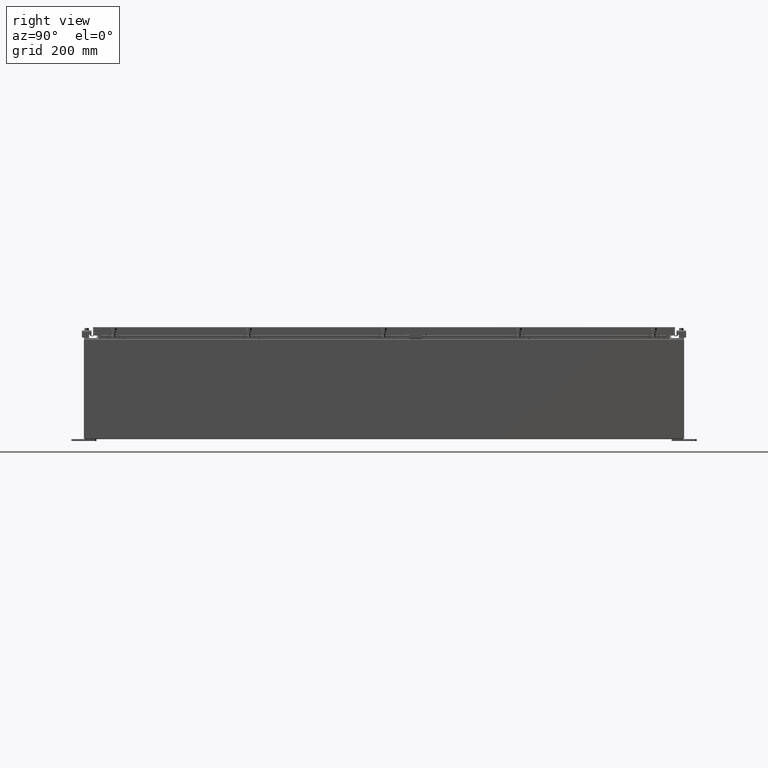
[diagram: clean part render]
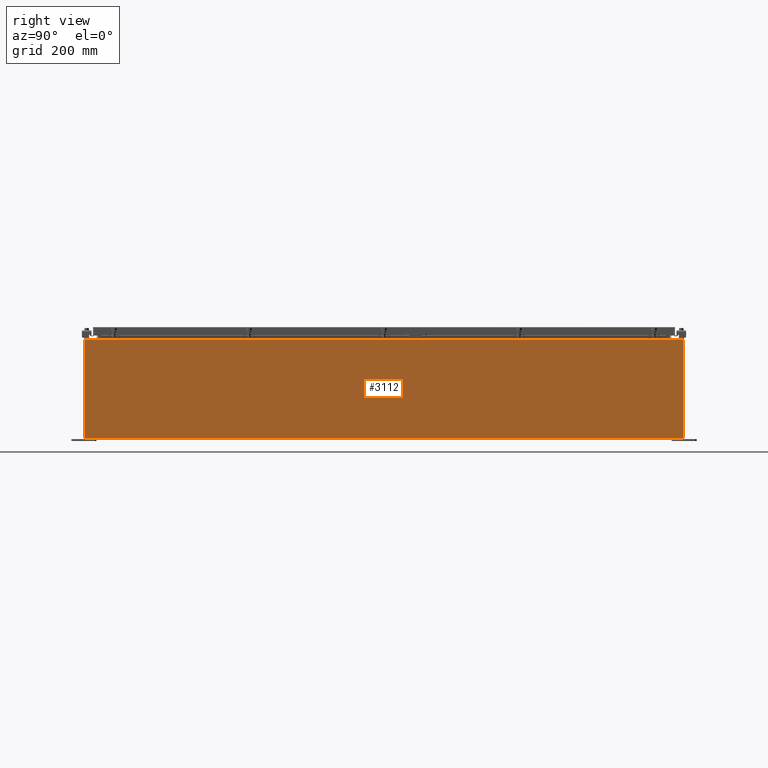
[diagram: same view with one face highlighted and labeled with its STEP entity id]
A machine part, right view. The second image highlights one B-rep face of the part: STEP entity #3112.
In plain terms, the highlighted planar face has unit normal (-1, 0, 0).
Its self-contained STEP definition (entity closure, byte-faithful):
#1357 = EDGE_LOOP ( 'NONE', ( #56021, #49486, #12004, #35021 ) ) ;
#2898 = EDGE_CURVE ( 'NONE', #3398, #40173, #3984, .T. ) ;
#3112 = ADVANCED_FACE ( 'NONE', ( #29569 ), #60872, .F. ) ;
#3398 = VERTEX_POINT ( 'NONE', #12588 ) ;
#3621 = DIRECTION ( 'NONE',  ( -3.523082860860888200E-015, 0.0000000000000000000, -1.000000000000000000 ) ) ;
#3984 = LINE ( 'NONE', #22743, #43611 ) ;
#8281 = DIRECTION ( 'NONE',  ( 3.523082860860888200E-015, 0.0000000000000000000, 1.000000000000000000 ) ) ;
#11101 = EDGE_CURVE ( 'NONE', #40173, #39961, #41421, .T. ) ;
#12004 = ORIENTED_EDGE ( 'NONE', *, *, #56986, .F. ) ;
#12588 = CARTESIAN_POINT ( 'NONE',  ( 18.00000000000003600, 29.92529999999999300, 9.837599999999993000 ) ) ;
#12982 = CARTESIAN_POINT ( 'NONE',  ( 17.99999999999999600, -29.92530000000001100, 0.01299999999999984700 ) ) ;
#14904 = CARTESIAN_POINT ( 'NONE',  ( 17.99999999999999600, -29.92530000000001100, 0.01299999999999984300 ) ) ;
#21168 = DIRECTION ( 'NONE',  ( -0.0000000000000000000, -1.000000000000000000, -0.0000000000000000000 ) ) ;
#22743 = CARTESIAN_POINT ( 'NONE',  ( 18.00000000000003600, 29.92529999999999300, 9.837599999999993000 ) ) ;
#23295 = LINE ( 'NONE', #12982, #61557 ) ;
#23533 = LINE ( 'NONE', #38042, #35241 ) ;
#23581 = CARTESIAN_POINT ( 'NONE',  ( 17.99999999999999600, 0.0000000000000000000, -6.367630515150755500E-014 ) ) ;
#29569 = FACE_OUTER_BOUND ( 'NONE', #1357, .T. ) ;
#29733 = VECTOR ( 'NONE', #3621, 39.37007874015748100 ) ;
#31404 = EDGE_CURVE ( 'NONE', #51643, #3398, #23533, .T. ) ;
#34863 = CARTESIAN_POINT ( 'NONE',  ( 17.99999999999999600, -29.92530000000001100, -6.367630515150755500E-014 ) ) ;
#35021 = ORIENTED_EDGE ( 'NONE', *, *, #31404, .T. ) ;
#35241 = VECTOR ( 'NONE', #8281, 39.37007874015748100 ) ;
#37106 = CARTESIAN_POINT ( 'NONE',  ( 18.00000000000003200, -29.92530000000001100, 9.837600000000000100 ) ) ;
#38042 = CARTESIAN_POINT ( 'NONE',  ( 17.99999999999999600, 29.92529999999998900, -6.367630515150755500E-014 ) ) ;
#39961 = VERTEX_POINT ( 'NONE', #14904 ) ;
#40173 = VERTEX_POINT ( 'NONE', #37106 ) ;
#41421 = LINE ( 'NONE', #34863, #29733 ) ;
#42668 = DIRECTION ( 'NONE',  ( -0.0000000000000000000, -1.000000000000000000, -0.0000000000000000000 ) ) ;
#43611 = VECTOR ( 'NONE', #21168, 39.37007874015748100 ) ;
#44458 = DIRECTION ( 'NONE',  ( -1.000000000000000000, 0.0000000000000000000, 3.523082860860887800E-015 ) ) ;
#46997 = AXIS2_PLACEMENT_3D ( 'NONE', #23581, #44458, #61438 ) ;
#49486 = ORIENTED_EDGE ( 'NONE', *, *, #11101, .T. ) ;
#51643 = VERTEX_POINT ( 'NONE', #52203 ) ;
#52203 = CARTESIAN_POINT ( 'NONE',  ( 17.99999999999999600, 29.92529999999999300, 0.01299999999999984700 ) ) ;
#56021 = ORIENTED_EDGE ( 'NONE', *, *, #2898, .T. ) ;
#56986 = EDGE_CURVE ( 'NONE', #51643, #39961, #23295, .T. ) ;
#60872 = PLANE ( 'NONE',  #46997 ) ;
#61438 = DIRECTION ( 'NONE',  ( 3.523082860860887800E-015, 0.0000000000000000000, 1.000000000000000000 ) ) ;
#61557 = VECTOR ( 'NONE', #42668, 39.37007874015748100 ) ;